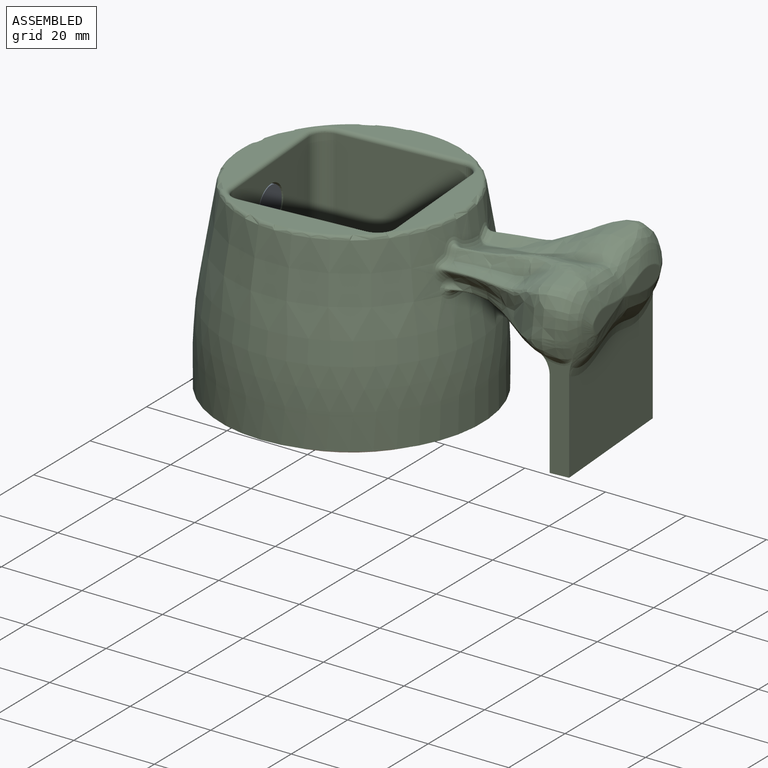
[diagram: assembled view]
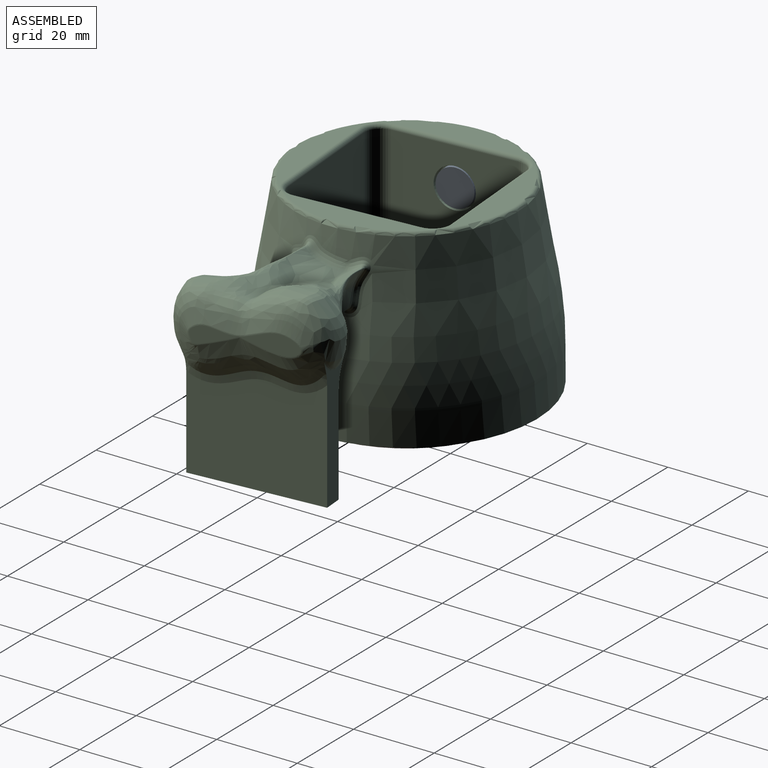
[diagram: assembled view, second angle]
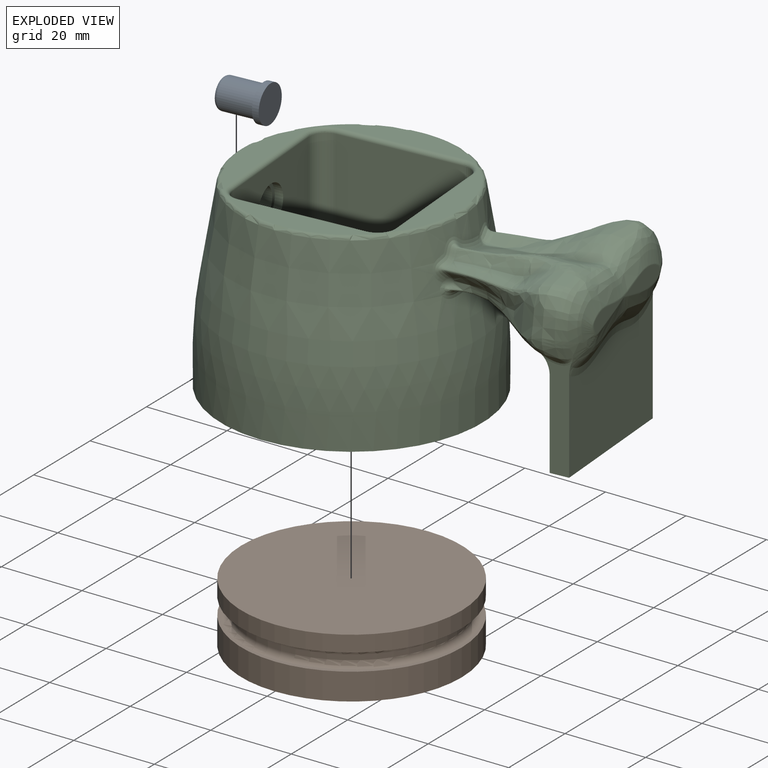
[diagram: exploded view]
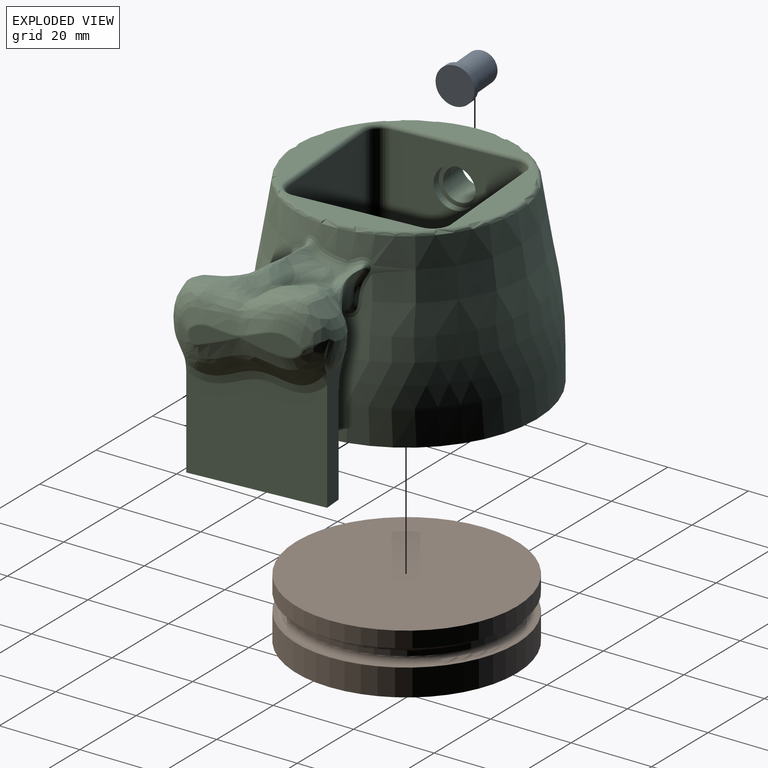
[diagram: exploded view, second angle]
ASSEMBLY  parts=3 mates=2
PART A: 6 faces, bbox 11.3x9.2x9.2 mm
  f0: cylinder r=4.6mm len=9.2mm, axis (1,0,0), area 46.2mm2, adj f1,f2
  f1: plane 9.2x9.2mm, normal (-1,0,0), area 21.2mm2, adj f0,f3
  f2: plane 9.2x9.2mm, normal (1,0,0), area 66.5mm2, adj f0
  f3: cylinder r=3.8mm len=8.7mm, axis (1,0,0), area 207.5mm2, adj f1,f5
  f4: plane 5.59x5.59mm, normal (-1,0,0), area 24.6mm2, adj f5
  f5: torus R=2.8mm, axis (-1,0,0), area 33.9mm2, adj f3,f4
PART B: 13 faces, bbox 59.8x15x59.8 mm
  f0: cylinder r=27.35mm len=54.7mm, axis (0,1,0), area 1151.4mm2, adj f2,f8
  f1: cylinder r=25.05mm len=50.1mm, axis (0,1,0), area 204.6mm2, adj f6,f7
  f2: plane 54.7x54.7mm, normal (0,1,0), area 135.5mm2, adj f0,f7
  f3: plane 54.7x54.7mm, normal (0,-1,0), area 135.5mm2, adj f5,f6
  f4: plane 54.7x54.7mm, normal (0,1,0), area 2350mm2, adj f5
  f5: cylinder r=27.35mm len=54.7mm, axis (0,1,0), area 687.4mm2, adj f3,f4
  f6: torus R=26.55mm, axis (0,1,0), area 378.9mm2, adj f1,f3
  f7: torus R=26.55mm, axis (0,1,0), area 378.9mm2, adj f1,f2
  f8: plane 54.7x54.7mm, normal (0,-1,0), area 918mm2, adj f0,f11
  f9: cylinder r=18.9mm len=37.8mm, axis (0,1,0), area 1187.5mm2, adj f10,f12
  f10: plane 42.7x42.7mm, normal (0,-1,0), area 309.8mm2, adj f9,f11
  f11: cylinder r=21.35mm len=42.7mm, axis (0,1,0), area 1341.5mm2, adj f8,f10
  f12: plane 37.8x37.8mm, normal (0,-1,0), area 1122.2mm2, adj f9
PART C: 53 faces, bbox 98x65.3x46.6 mm
  f0: plane 33.34x4.6mm, normal (0,0,-1), area 153.4mm2, adj f1,f2,f3,f4
  f1: plane 25.94x6.59mm, normal (0,-1,0), area 116.3mm2, adj f0,f2,f3,f49,f50,f51
  f2: plane 33.35x24.66mm, normal (-1,0,0), area 715.7mm2, adj f0,f1,f4,f47,f49
  f3: plane 33.35x27.48mm, normal (1,0,0), area 794mm2, adj f0,f1,f4,f50
  f4: plane 32.64x7.86mm, normal (0,1,0), area 142.3mm2, adj f0,f2,f3,f47,f50,f52
  f5: bspline ~39.48x36.68mm, area 2679.9mm2, adj f42,f43,f44,f45,f46,f47,f48,f49
  f6: cylinder r=4mm len=8mm, axis (1,0,0), area 193.1mm2, adj f28,f30
  f7: cylinder r=32.35mm len=64.7mm, axis (0,0,1), area 1558.9mm2, adj f13,f16,f31
  f8: cylinder r=29.85mm len=59.7mm, axis (0,0,1), area 110mm2, adj f9,f10,f16
  f9: torus R=28.05mm, axis (0,0,-1), area 512.9mm2, adj f8,f15,f16
  f10: torus R=28.05mm, axis (0,0,-1), area 512.9mm2, adj f8,f14,f16
  f11: cylinder r=27.75mm len=55.5mm, axis (0,0,1), area 802mm2, adj f13,f14
  f12: cylinder r=27.75mm len=55.5mm, axis (0,0,1), area 732.3mm2, adj f15,f17
  f13: plane 64.7x64.7mm, normal (0,0,-1), area 868.5mm2, adj f7,f11
  f14: plane 56.1x56.1mm, normal (0,0,1), area 52.6mm2, adj f10,f11
  f15: plane 56.1x56.1mm, normal (0,0,-1), area 52.6mm2, adj f9,f12
  f16: cylinder r=2.1mm len=4.3mm, axis (1,0,0), area 41mm2, adj f7,f8,f9,f10,f31
  f17: plane 55.5x55.5mm, normal (0,0,-1), area 2419.2mm2, adj f12
  f18: plane 53.01x53.01mm, normal (0,0,1), area 604mm2, adj f32,f33,f34,f35,f36,f37,f38,f39
  f19: plane 38.3x38.3mm, normal (0,0,1), area 1453.2mm2, adj f20,f21,f22,f23,f24,f25,f26,f27
  f20: plane 30.3x27mm, normal (0,1,0), area 818.1mm2, adj f19,f24,f25,f39
  f21: plane 30.3x27mm, normal (-1,0,0), area 818.1mm2, adj f19,f25,f26,f36
  f22: plane 30.3x27mm, normal (0,-1,0), area 818.1mm2, adj f19,f26,f27,f32
  f23: plane 30.3x27mm, normal (1,0,0), area 739.6mm2, adj f19,f24,f27,f29,f35
  f24: cylinder r=4mm len=27mm, axis (0,0,-1), area 169.6mm2, adj f19,f20,f23,f37
  f25: cylinder r=4mm len=27mm, axis (0,0,1), area 169.6mm2, adj f19,f20,f21,f38
  f26: cylinder r=4mm len=27mm, axis (0,0,-1), area 169.6mm2, adj f19,f21,f22,f34
  f27: cylinder r=4mm len=27mm, axis (0,0,1), area 169.6mm2, adj f19,f22,f23,f33
  f28: cone r=27.35mm half-angle=9.5deg, axis (0,0,-1), area 3649mm2, adj f6,f31,f40,f44,f45
  f29: cylinder r=5mm len=10mm, axis (1,0,0), area 62.8mm2, adj f23,f30
  f30: plane 10x10mm, normal (1,0,0), area 28.3mm2, adj f6,f29
  f31: revolved ~64.6x64.6mm, area 3309.7mm2, adj f7,f16,f28
  f32: cylinder r=1mm len=30.3mm, axis (1,0,0), area 47.6mm2, adj f18,f22,f33,f34
  f33: torus R=5mm, axis (0,0,1), area 10.8mm2, adj f18,f27,f32,f35
  f34: torus R=5mm, axis (0,0,1), area 10.8mm2, adj f18,f26,f32,f36
  f35: cylinder r=1mm len=30.3mm, axis (0,1,0), area 47.6mm2, adj f18,f23,f33,f37
  f36: cylinder r=1mm len=30.3mm, axis (0,-1,0), area 47.6mm2, adj f18,f21,f34,f38
  f37: torus R=5mm, axis (0,0,1), area 10.8mm2, adj f18,f24,f35,f39
  f38: torus R=5mm, axis (0,0,1), area 10.8mm2, adj f18,f25,f36,f39
  f39: cylinder r=1mm len=30.3mm, axis (-1,0,0), area 47.6mm2, adj f18,f20,f37,f38
  f40: torus R=26.5mm, axis (0,0,1), area 239.3mm2, adj f18,f28
  f41: plane 26.44x6.89mm, normal (1,0,0), area 71.4mm2, adj f42
  f42: bspline ~27.32x7.7mm, area 20.3mm2, adj f5,f41
  f43: bspline ~2.2x2.07mm, area 2.3mm2, adj f5,f44,f45
  f44: bspline ~19.55x13.04mm, area 102mm2, adj f5,f28,f43,f46
  f45: bspline ~15.21x8.76mm, area 57.8mm2, adj f5,f28,f43,f46
  f46: bspline ~1.93x1.67mm, area 0.7mm2, adj f5,f44,f45
  f47: bspline ~22.13x12.58mm, area 108.9mm2, adj f2,f4,f5,f48,f52
  f48: bspline ~5.4x4.47mm, area 13.6mm2, adj f5,f47,f49
  f49: bspline ~21.07x7.51mm, area 99.5mm2, adj f1,f2,f5,f48,f51
  f50: bspline ~41.47x15.06mm, area 142.1mm2, adj f1,f3,f4,f5,f51,f52
  f51: bspline ~10.84x3.91mm, area 8.5mm2, adj f1,f5,f49,f50
  f52: bspline ~10.38x6.06mm, area 6.3mm2, adj f4,f5,f47,f50
PLACE A rot(axis=(0,0,1),4.3deg) t=(-17.84,6.75,1.07)mm
PLACE B rot(axis=(1,0,0),90deg) t=(-17.74,6.75,-4.23)mm fixed
PLACE C rot(axis=(0,0,1),4.3deg) t=(-17.74,6.75,1.07)mm
MATE revolute C.f7 <-> B.f1  axis (0,0,-1) through (-17.74,6.75,-4.73)mm
MATE slider A.f5 <-> C.f29  axis (-1,-0.08,0) through (-48.21,4.46,23.77)mm
